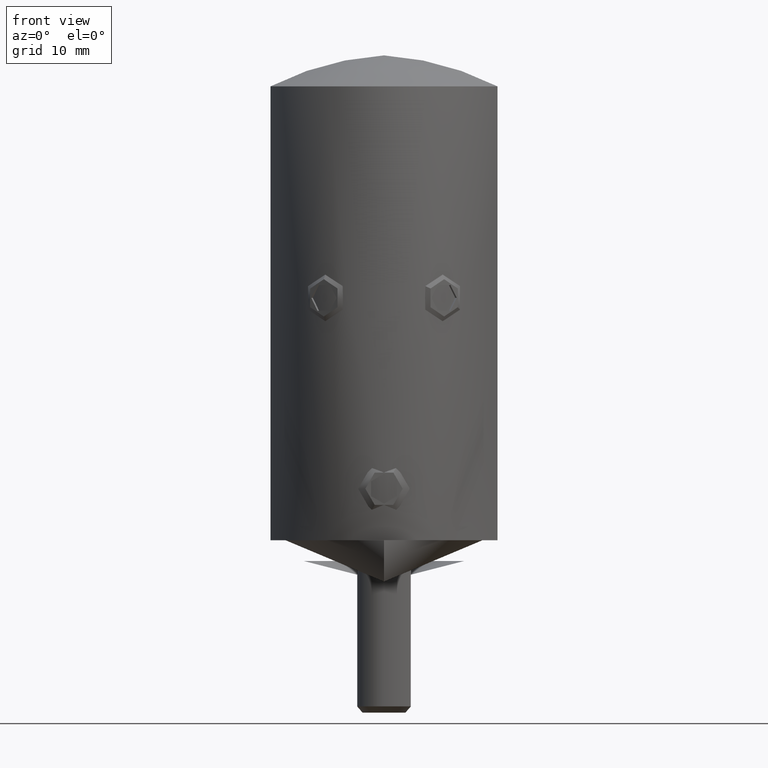
[diagram: clean part render]
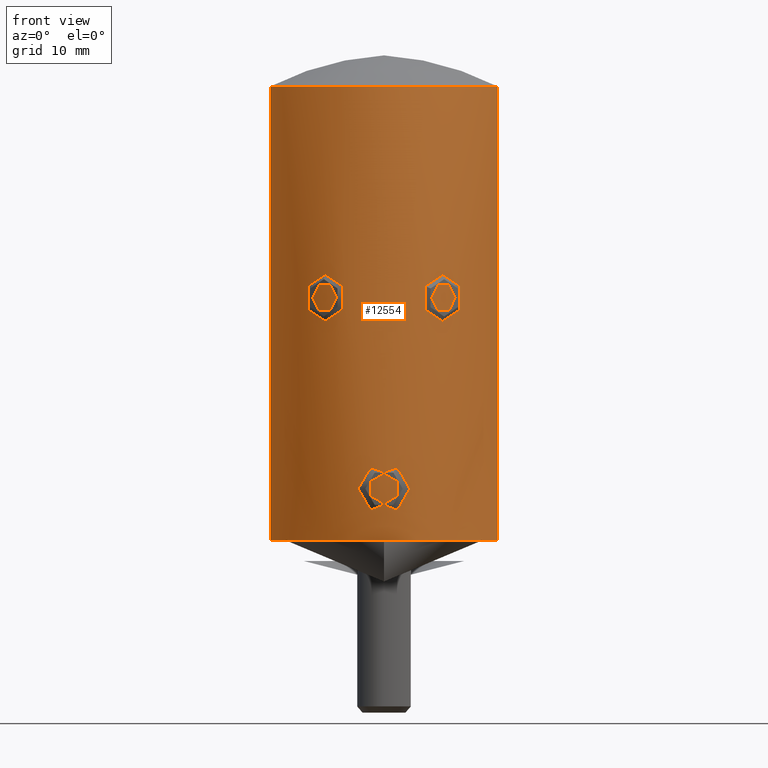
[diagram: same view with one face highlighted and labeled with its STEP entity id]
A machine part, front view. The second image highlights one B-rep face of the part: STEP entity #12554.
In plain terms, the highlighted cylindrical surface (partial cylindrical patch) has radius 11 mm, axis along (0, 0, 1).
Its self-contained STEP definition (entity closure, byte-faithful):
#91 = CARTESIAN_POINT ( 'NONE',  ( 7.562417526686486369, -7.988647556809546302, 24.71000965120895643 ) ) ;
#238 = CARTESIAN_POINT ( 'NONE',  ( 6.374115018080872552, -8.966432038789262648, 25.83722599155058930 ) ) ;
#307 = ORIENTED_EDGE ( 'NONE', *, *, #19941, .T. ) ;
#328 = DIRECTION ( 'NONE',  ( -0.000000000000000000, -0.000000000000000000, 1.000000000000000000 ) ) ;
#367 = CARTESIAN_POINT ( 'NONE',  ( 9.494849601237005388, -5.554889612239379382, 27.85512042307930258 ) ) ;
#374 = CARTESIAN_POINT ( 'NONE',  ( 4.472313800651685156, -10.05072909389179436, 21.58066130423537388 ) ) ;
#411 = CARTESIAN_POINT ( 'NONE',  ( -7.805173626811875209, -7.751081515202911554, 23.50247619131340571 ) ) ;
#450 = CARTESIAN_POINT ( 'NONE',  ( 10.08068197055299642, -4.419366348462880900, 29.67753133756049877 ) ) ;
#601 = CARTESIAN_POINT ( 'NONE',  ( 10.72101701489970793, -2.468618027424990036, 15.15792903129216640 ) ) ;
#660 = CARTESIAN_POINT ( 'NONE',  ( 1.263044276292241586, -10.92810671216221330, 7.093506342103812479 ) ) ;
#688 = CARTESIAN_POINT ( 'NONE',  ( 9.718334420191716561, -5.156983217115807427, 19.42578496535835342 ) ) ;
#787 = B_SPLINE_CURVE_WITH_KNOTS ( 'NONE', 3,
 ( #16058, #1942, #19585, #19743, #7342, #21462, #21311, #3748, #16211, #9109, #10737, #9038, #8883, #5463, #1868, #10586, #10894, #238, #2016, #18089, #14344, #21385, #10663, #91, #3664, #7418, #23089, #16133 ),
 .UNSPECIFIED., .F., .F.,
 ( 4, 2, 2, 2, 2, 2, 2, 2, 2, 2, 2, 2, 2, 4 ),
 ( 0.5000000000000000000, 0.5624999999999992228, 0.5937499999999992228, 0.6249999999999992228, 0.6562499999999993339, 0.6874999999999993339, 0.7187499999999993339, 0.7499999999999993339, 0.7812499999999993339, 0.8124999999999993339, 0.8749999999999988898, 0.9062499999999991118, 0.9374999999999991118, 1.000000000000000000 ),
 .UNSPECIFIED. ) ;
#1038 = CARTESIAN_POINT ( 'NONE',  ( -1.261211241492135926, -10.92831925418233574, 2.905472548763628815 ) ) ;
#1110 = CARTESIAN_POINT ( 'NONE',  ( -10.68077503142536244, -2.640318671985240062, 30.87636742385610944 ) ) ;
#1266 = CARTESIAN_POINT ( 'NONE',  ( -10.58631334673217239, -2.992962176338225255, 15.66481509487884338 ) ) ;
#1325 = CARTESIAN_POINT ( 'NONE',  ( 10.99999999999999289, 0.000000000000000000, 44.00000000000000000 ) ) ;
#1368 = CARTESIAN_POINT ( 'NONE',  ( 2.511799944583986033, -10.70938191707797849, 5.156688389980408793 ) ) ;
#1475 = CARTESIAN_POINT ( 'NONE',  ( -10.95871493289263299, -0.9824078860718470363, 14.29295309061734720 ) ) ;
#1535 = CARTESIAN_POINT ( 'NONE',  ( -7.169969619447617681, -8.342990027515382323, 21.68006691387021689 ) ) ;
#1543 = CARTESIAN_POINT ( 'NONE',  ( -10.84073496705685358, -1.876116880764276074, 14.71792350598957277 ) ) ;
#1631 = CARTESIAN_POINT ( 'NONE',  ( 7.425485977138197136, -8.116079469822636838, 22.02587819796477575 ) ) ;
#1663 = EDGE_LOOP ( 'NONE', ( #21946, #5210 ) ) ;
#1671 = CARTESIAN_POINT ( 'NONE',  ( -7.711835532702793650, -7.844220296498500389, 22.72097590632401065 ) ) ;
#1700 = CARTESIAN_POINT ( 'NONE',  ( 5.968281494608387305, -9.241571220430506273, 21.08483023268387058 ) ) ;
#1706 = DIRECTION ( 'NONE',  ( -0.000000000000000000, -0.000000000000000000, 1.000000000000000000 ) ) ;
#1741 = CARTESIAN_POINT ( 'NONE',  ( -5.548035723581857148, -9.499777870704122051, 21.10036188871868035 ) ) ;
#1772 = CARTESIAN_POINT ( 'NONE',  ( -0.3276201266748411389, -10.99632626431402294, 7.399832416810085078 ) ) ;
#1777 = CARTESIAN_POINT ( 'NONE',  ( 6.743819097431885901, -8.691603196917165874, 21.32930433181956431 ) ) ;
#1794 = CARTESIAN_POINT ( 'NONE',  ( -3.791161425055119771, -10.32624101775202341, 24.57151056503725073 ) ) ;
#1859 = CARTESIAN_POINT ( 'NONE',  ( -7.424473110163734901, -8.117006898706009110, 24.97580249680648734 ) ) ;
#1868 = CARTESIAN_POINT ( 'NONE',  ( 5.690929114965480373, -9.414910090794451847, 25.91528120711132388 ) ) ;
#1942 = CARTESIAN_POINT ( 'NONE',  ( 3.545320702733750107, -10.41300634729819663, 23.81765462898348673 ) ) ;
#2016 = CARTESIAN_POINT ( 'NONE',  ( 6.503923870808940855, -8.872542174978148566, 25.79025270532842384 ) ) ;
#2141 = CARTESIAN_POINT ( 'NONE',  ( 9.667481184334759448, -5.249248039840224145, 28.51082364398957836 ) ) ;
#2147 = CARTESIAN_POINT ( 'NONE',  ( 3.560550981725924213, -10.40786153032136063, 23.18513662173922540 ) ) ;
#2156 = CYLINDRICAL_SURFACE ( 'NONE', #5063, 10.99999999999999645 ) ;
#2221 = CARTESIAN_POINT ( 'NONE',  ( 9.156710212992042131, -6.095464100352851133, 25.21629309765378224 ) ) ;
#2377 = CARTESIAN_POINT ( 'NONE',  ( 10.93426773699784782, -1.221466730520446520, 14.38027336471710171 ) ) ;
#2447 = CARTESIAN_POINT ( 'NONE',  ( 10.50059767142498046, -3.283602282751340251, 30.55050072601453692 ) ) ;
#2627 = CARTESIAN_POINT ( 'NONE',  ( -10.08153054388150949, -4.417296773384427944, 29.67942414873581214 ) ) ;
#2700 = CARTESIAN_POINT ( 'NONE',  ( -10.29566045163970323, -3.877733627698563446, 30.14505838312672026 ) ) ;
#2717 = CARTESIAN_POINT ( 'NONE',  ( 10.99999999999999645, 0.000000000000000000, 47.00000000000000000 ) ) ;
#2737 = AXIS2_PLACEMENT_3D ( 'NONE', #16114, #1706, #14167 ) ;
#2817 = CARTESIAN_POINT ( 'NONE',  ( 2.430721202019296978, -10.72812621128811195, 4.371317447606087647 ) ) ;
#2841 = CARTESIAN_POINT ( 'NONE',  ( -3.609331322611783133, -10.39179767779888230, 22.86600142990673845 ) ) ;
#2855 = CARTESIAN_POINT ( 'NONE',  ( -10.36679842674548446, -3.684352254798578752, 30.29002990219966662 ) ) ;
#2863 = CARTESIAN_POINT ( 'NONE',  ( -0.6586619931417231344, -10.98452728325522720, 2.647857589405006262 ) ) ;
#2933 = CARTESIAN_POINT ( 'NONE',  ( -10.82784448843477065, -1.952865275514412025, 31.12507027151094618 ) ) ;
#2943 = CARTESIAN_POINT ( 'NONE',  ( -2.177980241880012713, -10.78262365602483186, 6.213167996627092293 ) ) ;
#2974 = CARTESIAN_POINT ( 'NONE',  ( 2.256830909742722824, -10.76619328781119300, 6.071927192355250469 ) ) ;
#3048 = CARTESIAN_POINT ( 'NONE',  ( 1.890372269886347434, -10.83698242449020555, 3.402011649646412117 ) ) ;
#3157 = CARTESIAN_POINT ( 'NONE',  ( -10.99999999999999645, -0.2476221471021916587, 14.14600281952403016 ) ) ;
#3223 = CARTESIAN_POINT ( 'NONE',  ( -7.793681161086207787, -7.762708218601382271, 23.18513662161121758 ) ) ;
#3340 = CARTESIAN_POINT ( 'NONE',  ( -7.804981806833573899, -7.751274673826359596, 23.81765462891433671 ) ) ;
#3401 = CARTESIAN_POINT ( 'NONE',  ( 6.859476513185624569, -8.600386782140228448, 21.40451927381299413 ) ) ;
#3414 = ORIENTED_EDGE ( 'NONE', *, *, #21349, .F. ) ;
#3420 = CARTESIAN_POINT ( 'NONE',  ( -5.264747622640602032, -9.659641724199618196, 25.83722599151350252 ) ) ;
#3446 = CARTESIAN_POINT ( 'NONE',  ( -7.805173626811875209, -7.751081515202911554, 23.50247619131340571 ) ) ;
#3501 = CARTESIAN_POINT ( 'NONE',  ( -7.169343856186916497, -8.343527073118828241, 25.32063242528909441 ) ) ;
#3603 = LINE ( 'NONE', #5905, #21217 ) ;
#3616 = VERTEX_POINT ( 'NONE', #15865 ) ;
#3636 = CARTESIAN_POINT ( 'NONE',  ( 3.852577257774878028, -10.30409849752618534, 22.28070653185525885 ) ) ;
#3657 = CARTESIAN_POINT ( 'NONE',  ( -7.346751575596345063, -8.187745515988181566, 25.09683115603854020 ) ) ;
#3664 = CARTESIAN_POINT ( 'NONE',  ( 7.619228165846834600, -7.934199434366115078, 24.57151056502131681 ) ) ;
#3748 = CARTESIAN_POINT ( 'NONE',  ( 4.356278970466030742, -10.10132510513251347, 25.32063242525341451 ) ) ;
#3848 = CARTESIAN_POINT ( 'NONE',  ( 10.93313739207503055, -1.234929135000509826, 31.29486350151737639 ) ) ;
#4003 = CARTESIAN_POINT ( 'NONE',  ( 10.63186448416784380, -2.828027296435998039, 15.49204297359294991 ) ) ;
#4075 = CARTESIAN_POINT ( 'NONE',  ( 9.732232187159729264, -5.128920919710671100, 28.72184896973481827 ) ) ;
#4212 = CARTESIAN_POINT ( 'NONE',  ( 1.535022905134126647, -10.89323192799055739, 6.918116975740232988 ) ) ;
#4241 = CARTESIAN_POINT ( 'NONE',  ( 9.179988342886431951, -6.060982579414076810, 25.70855004478481476 ) ) ;
#4350 = VERTEX_POINT ( 'NONE', #15824 ) ;
#4421 = CARTESIAN_POINT ( 'NONE',  ( -9.473599840962538821, -5.592520689685470003, 20.82659574093291965 ) ) ;
#4438 = ORIENTED_EDGE ( 'NONE', *, *, #12477, .T. ) ;
#4511 = CARTESIAN_POINT ( 'NONE',  ( -1.892899697451231766, -10.83654340792173265, 3.404725381007292828 ) ) ;
#4600 = CARTESIAN_POINT ( 'NONE',  ( -2.256864148904717648, -10.76618397735613897, 6.071739856479851483 ) ) ;
#4670 = CARTESIAN_POINT ( 'NONE',  ( -10.50108648005596734, -3.282094437489232241, 30.55143786695226282 ) ) ;
#4689 = FACE_BOUND ( 'NONE', #16474, .T. ) ;
#4725 = CARTESIAN_POINT ( 'NONE',  ( -4.039565103524128453, -10.23183765173914139, 22.02587819793881962 ) ) ;
#4749 = CARTESIAN_POINT ( 'NONE',  ( -10.99999999999999822, -0.5014577260992743035, 31.39940828047582499 ) ) ;
#4789 = CARTESIAN_POINT ( 'NONE',  ( 0.6509923734749830659, -10.98190638562723009, 2.662025886934126007 ) ) ;
#4830 = CARTESIAN_POINT ( 'NONE',  ( -10.76398857083809979, -2.275499774362681915, 14.99907279001481974 ) ) ;
#4947 = VERTEX_POINT ( 'NONE', #21513 ) ;
#4964 = CARTESIAN_POINT ( 'NONE',  ( -3.545061720958730955, -10.41309451578122669, 23.50000000000000000 ) ) ;
#5063 = AXIS2_PLACEMENT_3D ( 'NONE', #22890, #15496, #10317 ) ;
#5081 = CARTESIAN_POINT ( 'NONE',  ( 7.169889557207483222, -8.343046086140359918, 21.68007258375818580 ) ) ;
#5119 = CARTESIAN_POINT ( 'NONE',  ( -6.373786854775193689, -8.966660593903942100, 21.16269285542367129 ) ) ;
#5210 = ORIENTED_EDGE ( 'NONE', *, *, #18022, .T. ) ;
#5220 = CARTESIAN_POINT ( 'NONE',  ( 6.106245008730688539, -9.150969996466560730, 21.10036188870719442 ) ) ;
#5235 = CARTESIAN_POINT ( 'NONE',  ( -6.105894110329868063, -9.151179188630644390, 25.89959423357452195 ) ) ;
#5291 = CARTESIAN_POINT ( 'NONE',  ( 5.265096904096317587, -9.659446964854678797, 21.16269285541460476 ) ) ;
#5294 = ORIENTED_EDGE ( 'NONE', *, *, #6348, .T. ) ;
#5384 = CARTESIAN_POINT ( 'NONE',  ( -7.560285272163928205, -7.990662585836457943, 24.71466949281759540 ) ) ;
#5455 = CARTESIAN_POINT ( 'NONE',  ( -6.371619301521098677, -8.968193291040915227, 25.83795955607796557 ) ) ;
#5458 = VERTEX_POINT ( 'NONE', #9123 ) ;
#5463 = CARTESIAN_POINT ( 'NONE',  ( 5.548377568053958875, -9.499554189082150657, 25.89959423357754531 ) ) ;
#5509 = CARTESIAN_POINT ( 'NONE',  ( 4.028696275426607798, -10.23842732515859311, 22.01615640593359302 ) ) ;
#5665 = CARTESIAN_POINT ( 'NONE',  ( 10.19129927505126787, -4.147017466268720476, 17.23842105529819690 ) ) ;
#5749 = CARTESIAN_POINT ( 'NONE',  ( 9.185728301568174103, -6.051719503376332909, 23.47940804356964861 ) ) ;
#5905 = CARTESIAN_POINT ( 'NONE',  ( 10.99999999999999645, 0.000000000000000000, 47.00000000000000000 ) ) ;
#5995 = CARTESIAN_POINT ( 'NONE',  ( 9.251613099835374499, -5.950594844368697345, 26.43808687914242839 ) ) ;
#6230 = CARTESIAN_POINT ( 'NONE',  ( -9.897646929197605914, -4.824942360906617544, 18.51753303126745820 ) ) ;
#6308 = CARTESIAN_POINT ( 'NONE',  ( 11.00000000000000000, 0.000000000000000000, 0.000000000000000000 ) ) ;
#6348 = EDGE_CURVE ( 'NONE', #17886, #19252, #18450, .T. ) ;
#6478 = CARTESIAN_POINT ( 'NONE',  ( -2.257482614959126721, -10.76605286276670270, 3.929546619571035126 ) ) ;
#6548 = CARTESIAN_POINT ( 'NONE',  ( -9.281883585321498487, -5.903502644170380620, 26.68170132992245769 ) ) ;
#6559 = CARTESIAN_POINT ( 'NONE',  ( -1.996185883738286648, -10.81775451556606527, 6.474240922415234856 ) ) ;
#6614 = CARTESIAN_POINT ( 'NONE',  ( -3.545131718512484209, -10.41307068562699456, 23.18034840471058544 ) ) ;
#6664 = CARTESIAN_POINT ( 'NONE',  ( 2.179889364275034769, -10.78223673683557315, 6.210013498346492966 ) ) ;
#6701 = CARTESIAN_POINT ( 'NONE',  ( -10.19183751265292415, -4.145759157978440967, 17.23609329652746069 ) ) ;
#6871 = CARTESIAN_POINT ( 'NONE',  ( 6.501307959319777119, -8.874460939664617243, 21.20867836922007044 ) ) ;
#6903 = CARTESIAN_POINT ( 'NONE',  ( -7.805269536801024088, -7.750984935891188421, 23.34488697251294553 ) ) ;
#7025 = VERTEX_POINT ( 'NONE', #18881 ) ;
#7029 = CARTESIAN_POINT ( 'NONE',  ( -4.137386364257516824, -10.19292499362709314, 25.09543569689554943 ) ) ;
#7059 = CARTESIAN_POINT ( 'NONE',  ( -7.073002140894162793, -8.425638656219753386, 21.58066130417819295 ) ) ;
#7089 = CARTESIAN_POINT ( 'NONE',  ( -0.1616220108472313788, -11.00003883473658028, 7.415315291338803405 ) ) ;
#7184 = CARTESIAN_POINT ( 'NONE',  ( -3.609166875331112578, -10.39185009977212459, 24.13318355608095800 ) ) ;
#7240 = CARTESIAN_POINT ( 'NONE',  ( 3.623387571030210363, -10.38615267738330949, 22.87210132428354115 ) ) ;
#7302 = ORIENTED_EDGE ( 'NONE', *, *, #9851, .F. ) ;
#7342 = CARTESIAN_POINT ( 'NONE',  ( 3.867749033207075193, -10.29801531234704903, 24.71466949266376645 ) ) ;
#7390 = EDGE_CURVE ( 'NONE', #15173, #16832, #21503, .T. ) ;
#7418 = CARTESIAN_POINT ( 'NONE',  ( 7.757978377606393749, -7.799384945154917759, 24.13318355611280808 ) ) ;
#7464 = CARTESIAN_POINT ( 'NONE',  ( 9.394268010509946976, -5.731446176849933849, 21.29840599393586231 ) ) ;
#7479 = FACE_BOUND ( 'NONE', #1663, .T. ) ;
#7507 = LINE ( 'NONE', #23064, #13630 ) ;
#7544 = CARTESIAN_POINT ( 'NONE',  ( 9.935134642669448013, -4.730939886932010729, 29.32247421267227949 ) ) ;
#7701 = CARTESIAN_POINT ( 'NONE',  ( 10.56379577902986000, -3.075141893300894491, 30.66727140928966477 ) ) ;
#8035 = CARTESIAN_POINT ( 'NONE',  ( -2.179285043743967698, -10.78236625295122053, 3.788823220087998322 ) ) ;
#8111 = CARTESIAN_POINT ( 'NONE',  ( -2.430803093623571165, -10.72810763095610831, 5.628396886941443356 ) ) ;
#8221 = CARTESIAN_POINT ( 'NONE',  ( 2.178857699642383849, -10.78245327803368880, 3.788117446808564548 ) ) ;
#8223 = B_SPLINE_CURVE_WITH_KNOTS ( 'NONE', 3,
 ( #9151, #17983, #12757, #14383, #3848, #13135, #9305, #7701, #2447, #12983, #11091, #450, #7544, #4075, #2141, #21894, #367, #9227, #14932, #14781, #5995, #4241, #2221, #20244, #22040, #11172, #5749, #19946, #7464, #12901, #688, #14703, #14630, #5665, #16648, #13064, #21727, #18443, #4003, #601, #18296, #14861, #20167, #2377, #12830, #20016, #18214, #18131 ),
 .UNSPECIFIED., .F., .F.,
 ( 4, 2, 2, 2, 2, 2, 2, 2, 2, 2, 2, 2, 2, 2, 2, 2, 2, 2, 2, 2, 2, 2, 2, 4 ),
 ( 0.02383190917546753468, 0.02457588803516112808, 0.02531986689485472147, 0.02680782461424191174, 0.02755180347393550513, 0.02829578233362910200, 0.02978374005301629573, 0.03052771891270989260, 0.03127169777240348253, 0.03201567663209707593, 0.03275965549179067626, 0.03424761321117784918, 0.03499159207087144258, 0.03573557093056503597, 0.03871148636933942344, 0.04019944408872661717, 0.04168740180811381091, 0.04317535952750101158, 0.04391933838719461192, 0.04466331724688819838, 0.04540729610658179871, 0.04615127496627539905, 0.04689525382596899938, 0.04763923268566259972 ),
 .UNSPECIFIED. ) ;
#8258 = CARTESIAN_POINT ( 'NONE',  ( -9.543942195733453815, -5.472589204515950989, 28.08684565289690127 ) ) ;
#8273 = EDGE_CURVE ( 'NONE', #19252, #4350, #3603, .T. ) ;
#8334 = CARTESIAN_POINT ( 'NONE',  ( -9.397997172397694499, -5.717225328498642511, 27.39753572013949423 ) ) ;
#8369 = CARTESIAN_POINT ( 'NONE',  ( 2.495297978064271227, -10.71329013739203795, 4.682043413947125643 ) ) ;
#8633 = CARTESIAN_POINT ( 'NONE',  ( -10.72208490730656472, -2.463954307759059770, 15.15396610578907044 ) ) ;
#8747 = EDGE_CURVE ( 'NONE', #3616, #16832, #12268, .T. ) ;
#8805 = CARTESIAN_POINT ( 'NONE',  ( -4.038582169328935656, -10.23222862803731381, 24.97289511925500349 ) ) ;
#8824 = CARTESIAN_POINT ( 'NONE',  ( -6.107397005281661961, -9.150183762977192714, 21.10060669162954028 ) ) ;
#8858 = CARTESIAN_POINT ( 'NONE',  ( 5.126284629233063939, -9.733679403188105539, 21.20864326718159987 ) ) ;
#8883 = CARTESIAN_POINT ( 'NONE',  ( 5.267424675922499411, -9.658170671119631123, 25.83795955607490669 ) ) ;
#8997 = ORIENTED_EDGE ( 'NONE', *, *, #19393, .T. ) ;
#9038 = CARTESIAN_POINT ( 'NONE',  ( 5.127724821436193459, -9.732930862117440185, 25.79194129292848814 ) ) ;
#9084 = CARTESIAN_POINT ( 'NONE',  ( 4.355521960640050594, -10.10165211207700686, 21.68006691374431938 ) ) ;
#9102 = B_SPLINE_CURVE_WITH_KNOTS ( 'NONE', 3,
 ( #21224, #3340, #17695, #14106, #5384, #1859, #3657, #3501, #10499, #15821, #23009, #15894, #5455, #5235, #12330, #10427, #21452, #3420, #14336, #10652, #17846, #7029, #8805, #10729, #1794, #7184, #21303, #10576 ),
 .UNSPECIFIED., .F., .F.,
 ( 4, 2, 2, 2, 2, 2, 2, 2, 2, 2, 2, 2, 2, 4 ),
 ( 0.5000000000000000000, 0.5624999999999995559, 0.5937499999999996669, 0.6249999999999997780, 0.6562500000000000000, 0.6875000000000001110, 0.7187500000000002220, 0.7500000000000003331, 0.7812500000000004441, 0.8125000000000005551, 0.8750000000000008882, 0.9062500000000008882, 0.9375000000000006661, 1.000000000000000000 ),
 .UNSPECIFIED. ) ;
#9109 = CARTESIAN_POINT ( 'NONE',  ( 4.723918369463582678, -9.934956473674763089, 25.59595233828232708 ) ) ;
#9123 = CARTESIAN_POINT ( 'NONE',  ( -3.545061720958730955, -10.41309451578122669, 23.50000000000000000 ) ) ;
#9151 = CARTESIAN_POINT ( 'NONE',  ( 10.99999999999999645, -6.157719887952269557E-18, 31.39940828047582144 ) ) ;
#9227 = CARTESIAN_POINT ( 'NONE',  ( 9.397807185784358808, -5.717533353911916194, 27.39649446914842201 ) ) ;
#9305 = CARTESIAN_POINT ( 'NONE',  ( 10.73861026526337881, -2.425564938465551545, 30.97977864627794631 ) ) ;
#9396 = FACE_BOUND ( 'NONE', #11195, .T. ) ;
#9471 = EDGE_LOOP ( 'NONE', ( #14413, #5294, #20990, #7302, #14619, #20335, #3414, #4438 ) ) ;
#9508 = CARTESIAN_POINT ( 'NONE',  ( 1.660782927757288752, -10.87454360748492732, 6.818738680896125892 ) ) ;
#9781 = CARTESIAN_POINT ( 'NONE',  ( -2.511729057886794791, -10.70939854239877320, 5.157936335757355550 ) ) ;
#9851 = EDGE_CURVE ( 'NONE', #3616, #4350, #8223, .T. ) ;
#9929 = CARTESIAN_POINT ( 'NONE',  ( -10.86843869134571605, -1.713435614366018767, 31.19106142685406624 ) ) ;
#9968 = CARTESIAN_POINT ( 'NONE',  ( 2.511631889561120712, -10.70942133164946242, 4.839907027236585613 ) ) ;
#10005 = CARTESIAN_POINT ( 'NONE',  ( -1.877695347284969308E-15, -10.99999999999999645, 2.584844900694840852 ) ) ;
#10012 = CARTESIAN_POINT ( 'NONE',  ( -9.251907777510679054, -5.950137001418884353, 26.44060167831105446 ) ) ;
#10020 = CARTESIAN_POINT ( 'NONE',  ( -2.382999229834700028, -10.73896813810977946, 4.220662270624459644 ) ) ;
#10089 = CARTESIAN_POINT ( 'NONE',  ( -9.151198040853891769, -6.103736506717105215, 24.22079952748208242 ) ) ;
#10101 = CARTESIAN_POINT ( 'NONE',  ( -2.511703974928262806, -10.70940442520010016, 4.842739291575817617 ) ) ;
#10167 = CARTESIAN_POINT ( 'NONE',  ( -10.49064334275274035, -3.312741329978628357, 16.03352738035109937 ) ) ;
#10306 = CARTESIAN_POINT ( 'NONE',  ( -7.436173316839094660, -8.109199354684921701, 22.01615640568176246 ) ) ;
#10317 = DIRECTION ( 'NONE',  ( 1.000000000000000000, 0.000000000000000000, 0.000000000000000000 ) ) ;
#10376 = CARTESIAN_POINT ( 'NONE',  ( -5.264602615271450681, -9.659732878611981377, 21.16277964138235390 ) ) ;
#10427 = CARTESIAN_POINT ( 'NONE',  ( -5.687535236479453360, -9.416960716874086756, 25.91502748698403735 ) ) ;
#10479 = CARTESIAN_POINT ( 'NONE',  ( 7.561172679365780525, -7.989822004898798902, 22.28730717396087257 ) ) ;
#10499 = CARTESIAN_POINT ( 'NONE',  ( -7.070710384196105203, -8.427563085374723428, 25.42151148477987377 ) ) ;
#10548 = VECTOR ( 'NONE', #11777, 1000.000000000000000 ) ;
#10559 = CARTESIAN_POINT ( 'NONE',  ( 7.805122478971226130, -7.751133019999434381, 23.18034840471059255 ) ) ;
#10575 = B_SPLINE_CURVE_WITH_KNOTS ( 'NONE', 3,
 ( #4964, #6614, #2841, #15404, #22442, #4725, #15328, #19072, #17198, #20860, #12138, #21103, #10376, #1741, #15703, #14055, #8824, #5119, #13980, #12356, #17574, #7059, #1535, #10306, #14126, #1671, #10595, #3223, #6903, #3446 ),
 .UNSPECIFIED., .F., .F.,
 ( 4, 2, 2, 2, 2, 2, 2, 2, 2, 2, 2, 2, 2, 2, 4 ),
 ( 0.000000000000000000, 0.06250000000000045797, 0.09375000000000038858, 0.1250000000000003886, 0.1562500000000003608, 0.1875000000000003331, 0.2187500000000003331, 0.2500000000000002776, 0.2812500000000002776, 0.3125000000000002776, 0.3437500000000002776, 0.3750000000000002776, 0.4375000000000001110, 0.4687500000000000555, 0.5000000000000000000 ),
 .UNSPECIFIED. ) ;
#10576 = CARTESIAN_POINT ( 'NONE',  ( -3.545061720958730955, -10.41309451578122669, 23.50000000000000000 ) ) ;
#10586 = CARTESIAN_POINT ( 'NONE',  ( 5.970656882437384461, -9.240046677452882662, 25.91502748698987446 ) ) ;
#10595 = CARTESIAN_POINT ( 'NONE',  ( -7.746623625624999399, -7.809668836174816775, 22.87210132441156318 ) ) ;
#10627 = CARTESIAN_POINT ( 'NONE',  ( 0.002621827913309107781, -10.99999968754628199, 7.415153783528244169 ) ) ;
#10633 = CARTESIAN_POINT ( 'NONE',  ( 7.346014400583698922, -8.188394634141163309, 21.90222231627681282 ) ) ;
#10652 = CARTESIAN_POINT ( 'NONE',  ( -4.717684471916573585, -9.941608254181751647, 25.60877344002772560 ) ) ;
#10663 = CARTESIAN_POINT ( 'NONE',  ( 7.426268274256823787, -8.115367407186235837, 24.97289511930770090 ) ) ;
#10729 = CARTESIAN_POINT ( 'NONE',  ( -3.865003218402353724, -10.29904843937475079, 24.71000965126167870 ) ) ;
#10737 = CARTESIAN_POINT ( 'NONE',  ( 4.854478602979664714, -9.872058676099102925, 25.67017007462327527 ) ) ;
#10894 = CARTESIAN_POINT ( 'NONE',  ( 6.107296624452888345, -9.150255390473915895, 25.89942136833898445 ) ) ;
#10948 = VERTEX_POINT ( 'NONE', #11080 ) ;
#11080 = CARTESIAN_POINT ( 'NONE',  ( 7.805174582279883921, -7.751080553066904244, 23.50000000000000355 ) ) ;
#11091 = CARTESIAN_POINT ( 'NONE',  ( 10.29568834607458072, -3.877697571864470394, 30.14514275192497195 ) ) ;
#11172 = CARTESIAN_POINT ( 'NONE',  ( 9.172980409928875645, -6.070968219877378225, 23.72548738927508438 ) ) ;
#11176 = DIRECTION ( 'NONE',  ( -0.000000000000000000, -0.000000000000000000, 1.000000000000000000 ) ) ;
#11195 = EDGE_LOOP ( 'NONE', ( #12643, #13940 ) ) ;
#11308 = CARTESIAN_POINT ( 'NONE',  ( 1.998357958352855901, -10.81735236367632957, 6.471525135745544333 ) ) ;
#11357 = B_SPLINE_CURVE_WITH_KNOTS ( 'NONE', 3,
 ( #18649, #16938, #11634, #18421, #660, #4212, #9508, #22014, #11308, #6664, #2974, #19046, #20680, #22645, #1368, #9968, #8369, #2817, #15456, #13739, #8221, #22494, #3048, #19124, #15383, #13513, #4789, #20765, #22564, #15308 ),
 .UNSPECIFIED., .F., .F.,
 ( 4, 2, 2, 2, 2, 2, 2, 2, 2, 2, 2, 2, 2, 2, 4 ),
 ( 0.5000000000000000000, 0.5624999999999998890, 0.5937499999999998890, 0.6249999999999998890, 0.6562499999999998890, 0.6874999999999998890, 0.7187499999999998890, 0.7499999999999998890, 0.7812499999999998890, 0.8124999999999998890, 0.8437499999999998890, 0.8749999999999998890, 0.9375000000000000000, 0.9687500000000000000, 1.000000000000000000 ),
 .UNSPECIFIED. ) ;
#11491 = VERTEX_POINT ( 'NONE', #411 ) ;
#11634 = CARTESIAN_POINT ( 'NONE',  ( 0.6619940357764623196, -10.98427163760045389, 7.351015105423833518 ) ) ;
#11777 = DIRECTION ( 'NONE',  ( -0.000000000000000000, -0.000000000000000000, 1.000000000000000000 ) ) ;
#11921 = CARTESIAN_POINT ( 'NONE',  ( -9.235064815189408804, -5.976387414057341196, 22.74922716315580473 ) ) ;
#11927 = CARTESIAN_POINT ( 'NONE',  ( -1.543197030307336348, -10.89377639713939772, 6.931762059575705237 ) ) ;
#12138 = CARTESIAN_POINT ( 'NONE',  ( -4.855665494566325791, -9.871452515029023544, 21.32930433187538810 ) ) ;
#12224 = CARTESIAN_POINT ( 'NONE',  ( -10.63323463236587862, -2.822852607429332306, 15.48686999702419165 ) ) ;
#12268 = LINE ( 'NONE', #2717, #10548 ) ;
#12330 = CARTESIAN_POINT ( 'NONE',  ( -5.967326013728555090, -9.242198139794650658, 25.91528120711718586 ) ) ;
#12356 = CARTESIAN_POINT ( 'NONE',  ( -6.745148029873730522, -8.690586106758861007, 21.33002558951366368 ) ) ;
#12463 = CARTESIAN_POINT ( 'NONE',  ( -0.8104466577886553225, -10.97117418873913941, 7.291497780577482324 ) ) ;
#12466 = CARTESIAN_POINT ( 'NONE',  ( 7.805174582279883921, -7.751080553066904244, 23.50000000000000355 ) ) ;
#12477 = EDGE_CURVE ( 'NONE', #4947, #21323, #20444, .T. ) ;
#12493 = LINE ( 'NONE', #20291, #21421 ) ;
#12554 = ADVANCED_FACE ( 'NONE', ( #15826, #7479, #4689, #9396 ), #2156, .T. ) ;
#12643 = ORIENTED_EDGE ( 'NONE', *, *, #16955, .T. ) ;
#12690 = CARTESIAN_POINT ( 'NONE',  ( 3.544934155488831617, -10.41313794452829278, 23.34488697247837408 ) ) ;
#12757 = CARTESIAN_POINT ( 'NONE',  ( 10.99138456622760529, -0.5002250714047379310, 31.38610730047728481 ) ) ;
#12830 = CARTESIAN_POINT ( 'NONE',  ( 10.95859947120640676, -0.9838684448568346674, 14.29336497675423168 ) ) ;
#12835 = CARTESIAN_POINT ( 'NONE',  ( 3.669692313996829380, -10.37003170988661793, 22.72097590641497433 ) ) ;
#12901 = CARTESIAN_POINT ( 'NONE',  ( 9.631519731208602053, -5.315944351683327795, 19.88761584533627769 ) ) ;
#12983 = CARTESIAN_POINT ( 'NONE',  ( 10.36683068439162980, -3.684211851886622036, 30.29007826215869059 ) ) ;
#13064 = CARTESIAN_POINT ( 'NONE',  ( 10.43979944061768528, -3.468917546052639356, 16.23249284794688307 ) ) ;
#13135 = CARTESIAN_POINT ( 'NONE',  ( 10.83582434760962343, -1.954247557910655297, 31.13872917111605432 ) ) ;
#13310 = CARTESIAN_POINT ( 'NONE',  ( -9.283263599273572808, -5.902011725479058946, 22.26507300344912821 ) ) ;
#13388 = CARTESIAN_POINT ( 'NONE',  ( -10.99999999999999645, -3.162245699594417071E-16, 31.39940828047582499 ) ) ;
#13513 = CARTESIAN_POINT ( 'NONE',  ( 0.8106894968023071746, -10.97114265804650834, 2.708653337319289367 ) ) ;
#13558 = CARTESIAN_POINT ( 'NONE',  ( -0.3315329495195907250, -10.99999999999999289, 2.584844930053911582 ) ) ;
#13625 = CARTESIAN_POINT ( 'NONE',  ( -1.877695347284969308E-15, -10.99999999999999645, 2.584844900694840852 ) ) ;
#13630 = VECTOR ( 'NONE', #16031, 1000.000000000000000 ) ;
#13739 = CARTESIAN_POINT ( 'NONE',  ( 2.256039582244638630, -10.76635616935413253, 3.926755654150001273 ) ) ;
#13744 = VERTEX_POINT ( 'NONE', #10005 ) ;
#13934 = VERTEX_POINT ( 'NONE', #15708 ) ;
#13940 = ORIENTED_EDGE ( 'NONE', *, *, #14421, .T. ) ;
#13980 = CARTESIAN_POINT ( 'NONE',  ( -6.501357824642585825, -8.874438306724446335, 21.20864326726529825 ) ) ;
#14055 = CARTESIAN_POINT ( 'NONE',  ( -5.968756082567860055, -9.241264710416178474, 21.08485959924696829 ) ) ;
#14086 = CARTESIAN_POINT ( 'NONE',  ( 7.073224096298978303, -8.425471602283943540, 21.58076750936329091 ) ) ;
#14106 = CARTESIAN_POINT ( 'NONE',  ( -7.618544885495829533, -7.934854943584413789, 24.57324526187004565 ) ) ;
#14126 = CARTESIAN_POINT ( 'NONE',  ( -7.572403671526342528, -7.979692977131421117, 22.28070653203713292 ) ) ;
#14160 = CARTESIAN_POINT ( 'NONE',  ( 5.689463253177051705, -9.415786239710536520, 21.08485959924697895 ) ) ;
#14167 = DIRECTION ( 'NONE',  ( 1.000000000000000000, 0.000000000000000000, 0.000000000000000000 ) ) ;
#14336 = CARTESIAN_POINT ( 'NONE',  ( -5.123455516533243603, -9.735154540845735838, 25.79025270532844161 ) ) ;
#14344 = CARTESIAN_POINT ( 'NONE',  ( 7.083958268925083956, -8.418567494270950746, 25.42891471473646448 ) ) ;
#14383 = CARTESIAN_POINT ( 'NONE',  ( 10.95794404639704389, -0.9920796746228288665, 31.33381976368521649 ) ) ;
#14413 = ORIENTED_EDGE ( 'NONE', *, *, #19852, .F. ) ;
#14421 = EDGE_CURVE ( 'NONE', #11491, #5458, #9102, .T. ) ;
#14483 = DIRECTION ( 'NONE',  ( 1.000000000000000000, 0.000000000000000000, 0.000000000000000000 ) ) ;
#14619 = ORIENTED_EDGE ( 'NONE', *, *, #8747, .T. ) ;
#14630 = CARTESIAN_POINT ( 'NONE',  ( 9.996026330001596349, -4.597802995900677203, 18.08902729239646234 ) ) ;
#14636 = CARTESIAN_POINT ( 'NONE',  ( 3.545063004570470522, -10.41309407878492799, 23.50247619131340571 ) ) ;
#14703 = CARTESIAN_POINT ( 'NONE',  ( 9.900462438095132711, -4.798056201855557923, 18.52714488524556558 ) ) ;
#14781 = CARTESIAN_POINT ( 'NONE',  ( 9.281608931760763070, -5.903937260215351479, 26.67978181148476224 ) ) ;
#14861 = CARTESIAN_POINT ( 'NONE',  ( 10.84081443867489014, -1.875753506808878202, 14.71763004262933627 ) ) ;
#14932 = CARTESIAN_POINT ( 'NONE',  ( 9.354779368371730186, -5.787300104866424100, 27.15975188956022279 ) ) ;
#15106 = CARTESIAN_POINT ( 'NONE',  ( -9.402351056604711488, -5.710387033262662726, 21.30469601768610843 ) ) ;
#15173 = VERTEX_POINT ( 'NONE', #16406 ) ;
#15199 = CARTESIAN_POINT ( 'NONE',  ( -1.533328306782185457, -10.89347143111960747, 3.080631269952765372 ) ) ;
#15274 = CARTESIAN_POINT ( 'NONE',  ( -1.661524859630270301, -10.87442308525898582, 3.181962713572087598 ) ) ;
#15308 = CARTESIAN_POINT ( 'NONE',  ( -1.877695347284969308E-15, -10.99999999999999645, 2.584844900694840852 ) ) ;
#15328 = CARTESIAN_POINT ( 'NONE',  ( -4.139399588683989606, -10.19210995345161486, 21.90222231638175288 ) ) ;
#15355 = CARTESIAN_POINT ( 'NONE',  ( -1.115993498445740029, -10.94431255611213238, 2.830513048300596246 ) ) ;
#15383 = CARTESIAN_POINT ( 'NONE',  ( 1.265772666320428064, -10.93117442413803708, 2.890181047733308972 ) ) ;
#15404 = CARTESIAN_POINT ( 'NONE',  ( -3.791855412993424324, -10.32598738233422075, 22.42702881917441005 ) ) ;
#15420 = CARTESIAN_POINT ( 'NONE',  ( -9.354794618527440875, -5.787272587873967034, 27.15973355881193285 ) ) ;
#15456 = CARTESIAN_POINT ( 'NONE',  ( 2.381829622729973561, -10.73922843645344827, 4.217404884549844191 ) ) ;
#15496 = DIRECTION ( 'NONE',  ( -0.000000000000000000, -0.000000000000000000, 1.000000000000000000 ) ) ;
#15564 = CARTESIAN_POINT ( 'NONE',  ( -10.93506435769343454, -1.214807806913862143, 14.37741290804189909 ) ) ;
#15703 = CARTESIAN_POINT ( 'NONE',  ( -5.689946788221104335, -9.415494048024594775, 21.08483023268386702 ) ) ;
#15708 = CARTESIAN_POINT ( 'NONE',  ( 3.545063004570470522, -10.41309407878492799, 23.50247619131340571 ) ) ;
#15732 = CARTESIAN_POINT ( 'NONE',  ( 7.757859172116178037, -7.799509769101240053, 22.86600142991873241 ) ) ;
#15805 = CARTESIAN_POINT ( 'NONE',  ( 7.618695975549895749, -7.934712000149276356, 22.42702881916842372 ) ) ;
#15821 = CARTESIAN_POINT ( 'NONE',  ( -6.858650215871860745, -8.601027968299503002, 25.59595233824003202 ) ) ;
#15824 = CARTESIAN_POINT ( 'NONE',  ( 10.99999999999999645, -1.613032863370915042E-15, 14.14600281952402661 ) ) ;
#15826 = FACE_OUTER_BOUND ( 'NONE', #9471, .T. ) ;
#15865 = CARTESIAN_POINT ( 'NONE',  ( 10.99999999999999645, -6.157719887952269557E-18, 31.39940828047582144 ) ) ;
#15881 = CARTESIAN_POINT ( 'NONE',  ( 6.374260514340745587, -8.966341666376324682, 21.16277964139386114 ) ) ;
#15894 = CARTESIAN_POINT ( 'NONE',  ( -6.500053701613116353, -8.875404604142902443, 25.79194129288901394 ) ) ;
#16031 = DIRECTION ( 'NONE',  ( -0.000000000000000000, -0.000000000000000000, 1.000000000000000000 ) ) ;
#16058 = CARTESIAN_POINT ( 'NONE',  ( 3.545063004570470522, -10.41309407878492799, 23.50247619131340571 ) ) ;
#16114 = CARTESIAN_POINT ( 'NONE',  ( 0.000000000000000000, 0.000000000000000000, 44.00000000000000000 ) ) ;
#16133 = CARTESIAN_POINT ( 'NONE',  ( 7.805174582279883921, -7.751080553066904244, 23.50000000000000355 ) ) ;
#16211 = CARTESIAN_POINT ( 'NONE',  ( 4.475048106151569449, -10.04951289082196375, 25.42151148473758582 ) ) ;
#16406 = CARTESIAN_POINT ( 'NONE',  ( -10.99999999999999289, 1.347111479062087813E-15, 44.00000000000000000 ) ) ;
#16474 = EDGE_LOOP ( 'NONE', ( #307, #8997 ) ) ;
#16648 = CARTESIAN_POINT ( 'NONE',  ( 10.29106834762204770, -3.896808626440958712, 16.82578635361684860 ) ) ;
#16832 = VERTEX_POINT ( 'NONE', #1325 ) ;
#16903 = CARTESIAN_POINT ( 'NONE',  ( -9.710582549426433729, -5.177462022628182226, 19.41762332468742969 ) ) ;
#16938 = CARTESIAN_POINT ( 'NONE',  ( 0.3311095054343894950, -10.99992139316568718, 7.414830767907124809 ) ) ;
#16955 = EDGE_CURVE ( 'NONE', #5458, #11491, #10575, .T. ) ;
#16982 = CARTESIAN_POINT ( 'NONE',  ( -2.382856163159521756, -10.73900133748870545, 5.779816620065284738 ) ) ;
#17126 = EDGE_CURVE ( 'NONE', #13744, #7025, #19574, .T. ) ;
#17136 = CARTESIAN_POINT ( 'NONE',  ( -9.935765379171213496, -4.729709957007816712, 29.32436188056975723 ) ) ;
#17144 = CARTESIAN_POINT ( 'NONE',  ( -1.996072046942712008, -10.81778173647821184, 3.525478994928516574 ) ) ;
#17198 = CARTESIAN_POINT ( 'NONE',  ( -4.472066354762890938, -10.05085535444461797, 21.58076750938683475 ) ) ;
#17213 = CARTESIAN_POINT ( 'NONE',  ( -10.56435491736844057, -3.073213813164759944, 30.66829279250939777 ) ) ;
#17574 = CARTESIAN_POINT ( 'NONE',  ( -6.861096738111355009, -8.599075392189309497, 21.40577892341810795 ) ) ;
#17588 = CARTESIAN_POINT ( 'NONE',  ( -10.99999999999999645, 1.347129800413888000E-15, 14.14600281952402128 ) ) ;
#17695 = CARTESIAN_POINT ( 'NONE',  ( -7.757151347546926701, -7.800205097522365350, 24.13663394498376036 ) ) ;
#17846 = CARTESIAN_POINT ( 'NONE',  ( -4.461155431945654115, -10.05747660317583758, 25.42891471461487285 ) ) ;
#17886 = VERTEX_POINT ( 'NONE', #18342 ) ;
#17983 = CARTESIAN_POINT ( 'NONE',  ( 10.99999999999999822, -0.2495468869992591154, 31.39940828047582499 ) ) ;
#18022 = EDGE_CURVE ( 'NONE', #7025, #13744, #11357, .T. ) ;
#18074 = CARTESIAN_POINT ( 'NONE',  ( 0.000000000000000000, 0.000000000000000000, 0.000000000000000000 ) ) ;
#18089 = CARTESIAN_POINT ( 'NONE',  ( 6.867361557353961032, -8.598340926990177380, 25.60877344002775402 ) ) ;
#18131 = CARTESIAN_POINT ( 'NONE',  ( 10.99999999999999645, -1.613032863370915042E-15, 14.14600281952402661 ) ) ;
#18214 = CARTESIAN_POINT ( 'NONE',  ( 10.99999999999999467, -0.2519652550928430657, 14.14600281952403726 ) ) ;
#18296 = CARTESIAN_POINT ( 'NONE',  ( 10.76371629460333779, -2.276866364409295240, 15.00007257094141266 ) ) ;
#18342 = CARTESIAN_POINT ( 'NONE',  ( -10.99999999999999822, 1.347111479062088405E-15, 0.000000000000000000 ) ) ;
#18411 = CARTESIAN_POINT ( 'NONE',  ( -10.99999999999999645, 1.347129800413888000E-15, 14.14600281952402128 ) ) ;
#18421 = CARTESIAN_POINT ( 'NONE',  ( 1.116343252719576018, -10.94426300031695831, 7.169244775428248673 ) ) ;
#18443 = CARTESIAN_POINT ( 'NONE',  ( 10.58522211789765954, -2.996832365932809328, 15.66897255759936236 ) ) ;
#18450 = CIRCLE ( 'NONE', #19627, 11.00000000000000000 ) ;
#18649 = CARTESIAN_POINT ( 'NONE',  ( 0.002621827913309107781, -10.99999968754628199, 7.415153783528244169 ) ) ;
#18777 = CARTESIAN_POINT ( 'NONE',  ( -2.495562452211262716, -10.71322910456391853, 4.683362971068643965 ) ) ;
#18859 = B_SPLINE_CURVE_WITH_KNOTS ( 'NONE', 3,
 ( #12466, #10559, #15732, #15805, #10479, #1631, #10633, #5081, #14086, #3401, #1777, #6871, #15881, #5220, #1700, #14160, #19330, #5291, #8858, #21358, #23144, #374, #9084, #5509, #3636, #12835, #7240, #2147, #12690, #14636 ),
 .UNSPECIFIED., .F., .F.,
 ( 4, 2, 2, 2, 2, 2, 2, 2, 2, 2, 2, 2, 2, 2, 4 ),
 ( 0.000000000000000000, 0.06250000000000052736, 0.09375000000000045797, 0.1250000000000003886, 0.1562500000000003053, 0.1875000000000002498, 0.2187500000000001665, 0.2500000000000001110, 0.2812500000000000555, 0.3124999999999999445, 0.3437499999999998890, 0.3749999999999998335, 0.4374999999999998890, 0.4687499999999999445, 0.5000000000000000000 ),
 .UNSPECIFIED. ) ;
#18881 = CARTESIAN_POINT ( 'NONE',  ( 0.002621827913309107781, -10.99999968754628199, 7.415153783528244169 ) ) ;
#18923 = CARTESIAN_POINT ( 'NONE',  ( -9.663857765110272169, -5.263026034808699016, 28.51942864110653986 ) ) ;
#19046 = CARTESIAN_POINT ( 'NONE',  ( 2.383584876163848509, -10.73884196754025311, 5.778017131772740456 ) ) ;
#19072 = CARTESIAN_POINT ( 'NONE',  ( -4.355607442795515816, -10.10160472708712298, 21.68007258365323153 ) ) ;
#19124 = CARTESIAN_POINT ( 'NONE',  ( 1.543890676010287732, -10.89363039259127319, 3.069276441871780392 ) ) ;
#19160 = CARTESIAN_POINT ( 'NONE',  ( -10.44166798045407596, -3.463298747008931588, 16.22513325797717698 ) ) ;
#19252 = VERTEX_POINT ( 'NONE', #6308 ) ;
#19330 = CARTESIAN_POINT ( 'NONE',  ( 5.546824059578575827, -9.500468616254940102, 21.10060669163863523 ) ) ;
#19388 = CARTESIAN_POINT ( 'NONE',  ( -10.29294014991731743, -3.891896294933178346, 16.81813673376383278 ) ) ;
#19393 = EDGE_CURVE ( 'NONE', #13934, #10948, #787, .T. ) ;
#19574 = B_SPLINE_CURVE_WITH_KNOTS ( 'NONE', 3,
 ( #13625, #13558, #2863, #15355, #1038, #15199, #15274, #4511, #17144, #8035, #6478, #10020, #22534, #18777, #10101, #9781, #22290, #8111, #16982, #4600, #2943, #6559, #22614, #11927, #22693, #12463, #21507, #1772, #7089, #10627 ),
 .UNSPECIFIED., .F., .F.,
 ( 4, 2, 2, 2, 2, 2, 2, 2, 2, 2, 2, 2, 2, 2, 4 ),
 ( 0.000000000000000000, 0.06249999999999979183, 0.09374999999999969469, 0.1249999999999995837, 0.1562499999999994726, 0.1874999999999993894, 0.2187499999999994449, 0.2499999999999995004, 0.2812499999999995559, 0.3124999999999996114, 0.3437499999999996669, 0.3749999999999997224, 0.4374999999999998890, 0.4687499999999999445, 0.5000000000000000000 ),
 .UNSPECIFIED. ) ;
#19585 = CARTESIAN_POINT ( 'NONE',  ( 3.610266569471289433, -10.39146630122696457, 24.13663394485504199 ) ) ;
#19627 = AXIS2_PLACEMENT_3D ( 'NONE', #18074, #19729, #14483 ) ;
#19729 = DIRECTION ( 'NONE',  ( -0.000000000000000000, -0.000000000000000000, 1.000000000000000000 ) ) ;
#19743 = CARTESIAN_POINT ( 'NONE',  ( 3.792050123249058213, -10.32591424576105688, 24.57324526193439596 ) ) ;
#19852 = EDGE_CURVE ( 'NONE', #17886, #21323, #7507, .T. ) ;
#19941 = EDGE_CURVE ( 'NONE', #10948, #13934, #18859, .T. ) ;
#19946 = CARTESIAN_POINT ( 'NONE',  ( 9.268515488525329360, -5.925304606801424789, 22.25590857295209801 ) ) ;
#20016 = CARTESIAN_POINT ( 'NONE',  ( 10.99132887674609904, -0.4995888412661507183, 14.17673576610863506 ) ) ;
#20167 = CARTESIAN_POINT ( 'NONE',  ( 10.87546595887654277, -1.665662659555587455, 14.59208194115110580 ) ) ;
#20244 = CARTESIAN_POINT ( 'NONE',  ( 9.152591237187902351, -6.101645661278765509, 24.47087926967417104 ) ) ;
#20291 = CARTESIAN_POINT ( 'NONE',  ( -10.99999999999999645, 1.347111479062088010E-15, 47.00000000000000000 ) ) ;
#20335 = ORIENTED_EDGE ( 'NONE', *, *, #7390, .F. ) ;
#20444 = B_SPLINE_CURVE_WITH_KNOTS ( 'NONE', 3,
 ( #13388, #4749, #22284, #9929, #2933, #22457, #1110, #17213, #4670, #2855, #2700, #2627, #17136, #18923, #8258, #8334, #15420, #6548, #10012, #22526, #20802, #10089, #22607, #11921, #13310, #15106, #4421, #16903, #6230, #6701, #19388, #19160, #10167, #1266, #12224, #8633, #4830, #1543, #20952, #15564, #1475, #21036, #3157, #17588 ),
 .UNSPECIFIED., .F., .F.,
 ( 4, 2, 2, 2, 2, 2, 2, 2, 2, 2, 2, 2, 2, 2, 2, 2, 2, 2, 2, 2, 2, 4 ),
 ( 3.074338753397946839E-19, 0.001483315845811697181, 0.002224973768717545663, 0.002966631691623393061, 0.003708289614529240458, 0.004449947537435088724, 0.005933263383246781784, 0.007416579229058474845, 0.008158237151964323544, 0.008899895074870170508, 0.01038321092068186444, 0.01186652676649356010, 0.01334984261230525576, 0.01483315845811694969, 0.01779979014974033408, 0.01928310599555201760, 0.02002476391845786630, 0.02076642184136371500, 0.02150807976426956022, 0.02224973768717540892, 0.02299139561008125415, 0.02373305353298709938 ),
 .UNSPECIFIED. ) ;
#20680 = CARTESIAN_POINT ( 'NONE',  ( 2.431469541522517375, -10.72795581613280191, 5.625850491979974777 ) ) ;
#20765 = CARTESIAN_POINT ( 'NONE',  ( 0.3284569030097624354, -10.99628005262997910, 2.600367236531726078 ) ) ;
#20802 = CARTESIAN_POINT ( 'NONE',  ( -9.156734942247304332, -6.095426984534097592, 25.21871875238560889 ) ) ;
#20860 = CARTESIAN_POINT ( 'NONE',  ( -4.722979850241534550, -9.935418067277437260, 21.40451927378944674 ) ) ;
#20952 = CARTESIAN_POINT ( 'NONE',  ( -10.87572997435835198, -1.664298062090887598, 14.59112206390725319 ) ) ;
#20990 = ORIENTED_EDGE ( 'NONE', *, *, #8273, .T. ) ;
#21036 = CARTESIAN_POINT ( 'NONE',  ( -10.99131598310265545, -0.4995309746274513296, 14.17678215877819348 ) ) ;
#21103 = CARTESIAN_POINT ( 'NONE',  ( -5.126326831067308909, -9.733644506179283340, 21.20867836916423244 ) ) ;
#21217 = VECTOR ( 'NONE', #11176, 1000.000000000000000 ) ;
#21224 = CARTESIAN_POINT ( 'NONE',  ( -7.805173626811875209, -7.751081515202911554, 23.50247619131340571 ) ) ;
#21303 = CARTESIAN_POINT ( 'NONE',  ( -3.544992605608412006, -10.41311804559576792, 23.81562291544152998 ) ) ;
#21311 = CARTESIAN_POINT ( 'NONE',  ( 4.138493009041344095, -10.19248796723453765, 25.09683115607419168 ) ) ;
#21323 = VERTEX_POINT ( 'NONE', #18411 ) ;
#21349 = EDGE_CURVE ( 'NONE', #4947, #15173, #12493, .T. ) ;
#21358 = CARTESIAN_POINT ( 'NONE',  ( 4.854168774312600299, -9.872201088635096156, 21.33002558959739048 ) ) ;
#21385 = CARTESIAN_POINT ( 'NONE',  ( 7.347629493484974184, -8.186942449983181547, 25.09543569683471986 ) ) ;
#21421 = VECTOR ( 'NONE', #328, 1000.000000000000000 ) ;
#21452 = CARTESIAN_POINT ( 'NONE',  ( -5.546932442159912213, -9.500409793904257327, 25.89942136837608189 ) ) ;
#21462 = CARTESIAN_POINT ( 'NONE',  ( 4.040842682836158772, -10.23133385095892756, 24.97580249696031629 ) ) ;
#21503 = CIRCLE ( 'NONE', #2737, 10.99999999999999289 ) ;
#21507 = CARTESIAN_POINT ( 'NONE',  ( -0.6530340314928892997, -10.98180644577007037, 7.337544000688740020 ) ) ;
#21513 = CARTESIAN_POINT ( 'NONE',  ( -10.99999999999999645, -3.162245699594417071E-16, 31.39940828047582499 ) ) ;
#21727 = CARTESIAN_POINT ( 'NONE',  ( 10.48929323941067437, -3.317025603215282281, 16.03878005461850265 ) ) ;
#21894 = CARTESIAN_POINT ( 'NONE',  ( 9.549032377428092744, -5.461755952810698922, 28.07814574253252715 ) ) ;
#21946 = ORIENTED_EDGE ( 'NONE', *, *, #17126, .T. ) ;
#22014 = CARTESIAN_POINT ( 'NONE',  ( 1.893470199410739241, -10.83645095075712206, 6.594738271571696231 ) ) ;
#22040 = CARTESIAN_POINT ( 'NONE',  ( 9.156399203532410880, -6.095947699353323479, 24.22077481556660672 ) ) ;
#22284 = CARTESIAN_POINT ( 'NONE',  ( -10.96587584406542071, -0.9923969674564588894, 31.34738274521571455 ) ) ;
#22290 = CARTESIAN_POINT ( 'NONE',  ( -2.495363705465146964, -10.71327480272936050, 5.317531738162812438 ) ) ;
#22442 = CARTESIAN_POINT ( 'NONE',  ( -3.866604510448233167, -10.29844442219008727, 22.28730717398680383 ) ) ;
#22457 = CARTESIAN_POINT ( 'NONE',  ( -10.73393519092948090, -2.416305934057780380, 30.96758613150306161 ) ) ;
#22494 = CARTESIAN_POINT ( 'NONE',  ( 1.995493121734515318, -10.81788920119727138, 3.524738894744670503 ) ) ;
#22526 = CARTESIAN_POINT ( 'NONE',  ( -9.180215329875197838, -6.060640059761967180, 25.71182706151102337 ) ) ;
#22534 = CARTESIAN_POINT ( 'NONE',  ( -2.430626934631324509, -10.72814813956289548, 4.370817171179566252 ) ) ;
#22564 = CARTESIAN_POINT ( 'NONE',  ( 0.1643935056462921263, -10.99999999999999822, 2.584844886136884679 ) ) ;
#22607 = CARTESIAN_POINT ( 'NONE',  ( -9.169056902621067096, -6.077172383613068440, 23.72684320214823828 ) ) ;
#22614 = CARTESIAN_POINT ( 'NONE',  ( -1.892943344138700468, -10.83654561251813853, 6.595331397874538482 ) ) ;
#22645 = CARTESIAN_POINT ( 'NONE',  ( 2.495530447803820717, -10.71323517469552300, 5.316057407631480380 ) ) ;
#22693 = CARTESIAN_POINT ( 'NONE',  ( -1.268443744331167577, -10.93091935413366578, 7.108644643574839606 ) ) ;
#22890 = CARTESIAN_POINT ( 'NONE',  ( 0.000000000000000000, 0.000000000000000000, 47.00000000000000000 ) ) ;
#23009 = CARTESIAN_POINT ( 'NONE',  ( -6.744884210450216244, -8.690802149325165260, 25.67017007466277434 ) ) ;
#23064 = CARTESIAN_POINT ( 'NONE',  ( -10.99999999999999645, 1.347111479062088010E-15, 47.00000000000000000 ) ) ;
#23089 = CARTESIAN_POINT ( 'NONE',  ( 7.805226028912484182, -7.751028747393313267, 23.81562291544708287 ) ) ;
#23144 = CARTESIAN_POINT ( 'NONE',  ( 4.721090920942043745, -9.936299440259491078, 21.40577892336094123 ) ) ;